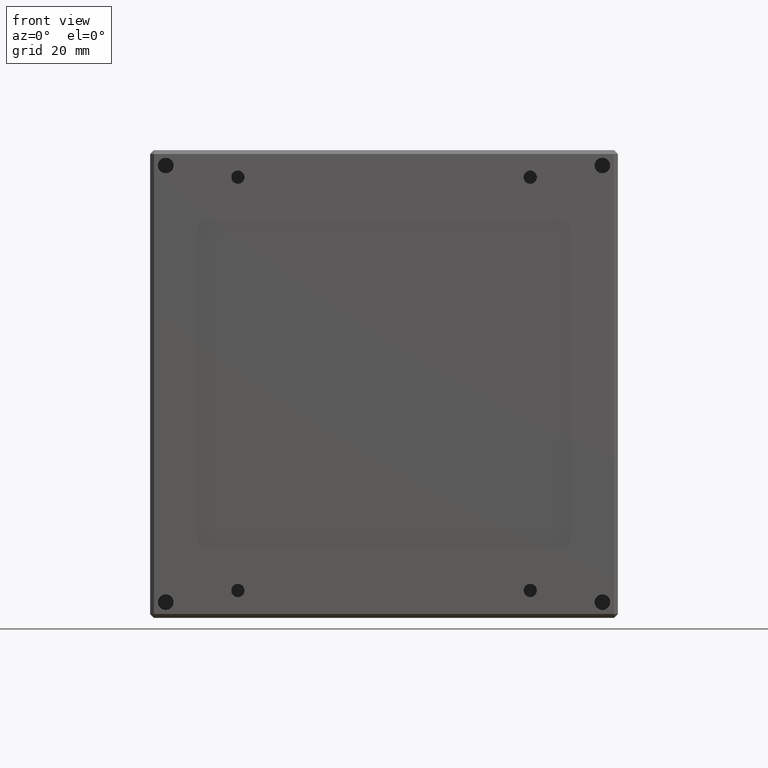
[diagram: clean part render]
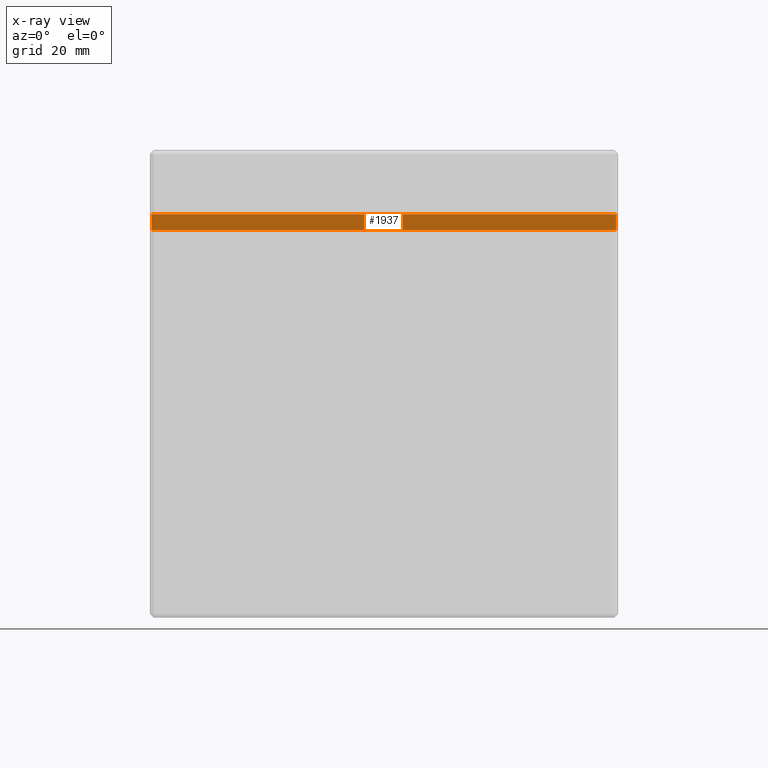
[diagram: x-ray — body ghosted, one internal face saturated and labeled with its STEP entity id]
A machine part, front view, then the same camera in x-ray: the body is ghosted and one INTERNAL B-rep face — a face not visible from any outside direction — is saturated and labeled: STEP entity #1937.
In plain terms, the highlighted planar face has unit normal (0, -1, 0).
Its self-contained STEP definition (entity closure, byte-faithful):
#988 = CARTESIAN_POINT ( 'NONE',  ( 59.49999999999997900, -17.00000000000000000, 39.50000000000000000 ) ) ;
#1937 = ADVANCED_FACE ( 'NONE', ( #21358 ), #4692, .T. ) ;
#4692 = PLANE ( 'NONE',  #14250 ) ;
#4900 = LINE ( 'NONE', #17591, #9260 ) ;
#7739 = VERTEX_POINT ( 'NONE', #10664 ) ;
#7785 = EDGE_CURVE ( 'NONE', #18723, #14013, #9873, .T. ) ;
#9260 = VECTOR ( 'NONE', #20964, 1000.000000000000000 ) ;
#9802 = DIRECTION ( 'NONE',  ( 0.0000000000000000000, -0.0000000000000000000, -1.000000000000000000 ) ) ;
#9873 = LINE ( 'NONE', #12252, #12179 ) ;
#10664 = CARTESIAN_POINT ( 'NONE',  ( -59.50000000000001400, -17.00000000000000000, 43.50000000000000000 ) ) ;
#11453 = DIRECTION ( 'NONE',  ( 0.0000000000000000000, -1.000000000000000000, 0.0000000000000000000 ) ) ;
#12179 = VECTOR ( 'NONE', #15369, 1000.000000000000000 ) ;
#12252 = CARTESIAN_POINT ( 'NONE',  ( -60.00000000000000700, -17.00000000000000000, 39.50000000000000000 ) ) ;
#12754 = ORIENTED_EDGE ( 'NONE', *, *, #18894, .T. ) ;
#13304 = ORIENTED_EDGE ( 'NONE', *, *, #7785, .F. ) ;
#13599 = CARTESIAN_POINT ( 'NONE',  ( 59.49999999999995700, -17.00000000000000000, 43.50000000000000000 ) ) ;
#14013 = VERTEX_POINT ( 'NONE', #20367 ) ;
#14250 = AXIS2_PLACEMENT_3D ( 'NONE', #21433, #11453, #9802 ) ;
#14792 = CARTESIAN_POINT ( 'NONE',  ( 59.49999999999997900, -17.00000000000000000, 43.50000000000000000 ) ) ;
#15369 = DIRECTION ( 'NONE',  ( -1.000000000000000000, -0.0000000000000000000, -0.0000000000000000000 ) ) ;
#15755 = EDGE_CURVE ( 'NONE', #7739, #14013, #19497, .T. ) ;
#16264 = CARTESIAN_POINT ( 'NONE',  ( -59.50000000000001400, -17.00000000000000000, 39.50000000000000000 ) ) ;
#17381 = VECTOR ( 'NONE', #21361, 1000.000000000000000 ) ;
#17577 = ORIENTED_EDGE ( 'NONE', *, *, #20359, .T. ) ;
#17591 = CARTESIAN_POINT ( 'NONE',  ( -59.99999999999998600, -17.00000000000000000, 43.50000000000000000 ) ) ;
#17862 = DIRECTION ( 'NONE',  ( 0.0000000000000000000, 0.0000000000000000000, -1.000000000000000000 ) ) ;
#18420 = LINE ( 'NONE', #14792, #17381 ) ;
#18723 = VERTEX_POINT ( 'NONE', #988 ) ;
#18894 = EDGE_CURVE ( 'NONE', #18723, #19531, #18420, .T. ) ;
#19497 = LINE ( 'NONE', #16264, #20248 ) ;
#19531 = VERTEX_POINT ( 'NONE', #13599 ) ;
#19813 = ORIENTED_EDGE ( 'NONE', *, *, #15755, .T. ) ;
#20248 = VECTOR ( 'NONE', #17862, 1000.000000000000000 ) ;
#20359 = EDGE_CURVE ( 'NONE', #19531, #7739, #4900, .T. ) ;
#20367 = CARTESIAN_POINT ( 'NONE',  ( -59.50000000000001400, -17.00000000000000000, 39.50000000000000000 ) ) ;
#20964 = DIRECTION ( 'NONE',  ( -1.000000000000000000, -0.0000000000000000000, -0.0000000000000000000 ) ) ;
#21164 = EDGE_LOOP ( 'NONE', ( #13304, #12754, #17577, #19813 ) ) ;
#21358 = FACE_OUTER_BOUND ( 'NONE', #21164, .T. ) ;
#21361 = DIRECTION ( 'NONE',  ( 0.0000000000000000000, 0.0000000000000000000, 1.000000000000000000 ) ) ;
#21433 = CARTESIAN_POINT ( 'NONE',  ( 0.0000000000000000000, -17.00000000000000000, 0.0000000000000000000 ) ) ;